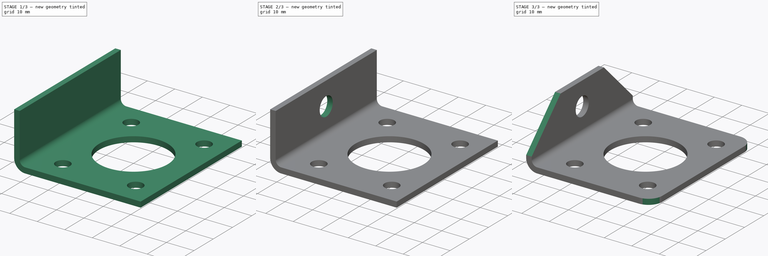
[diagram: build sequence overview — one tinted view per stage of 3, left to right]
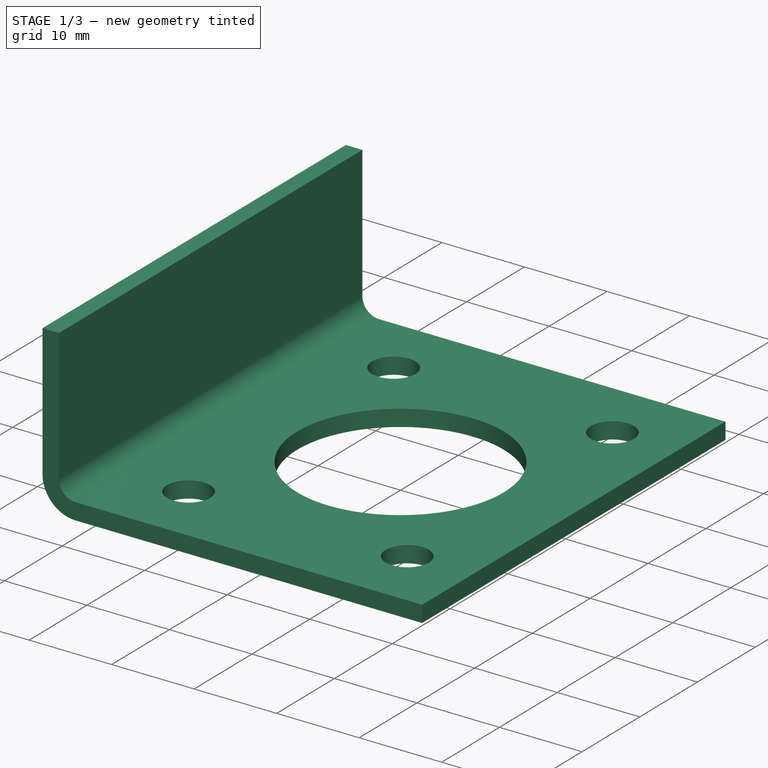
[diagram: stage 1 of 3 — iso view after this stage's code; geometry added in this stage tinted green]
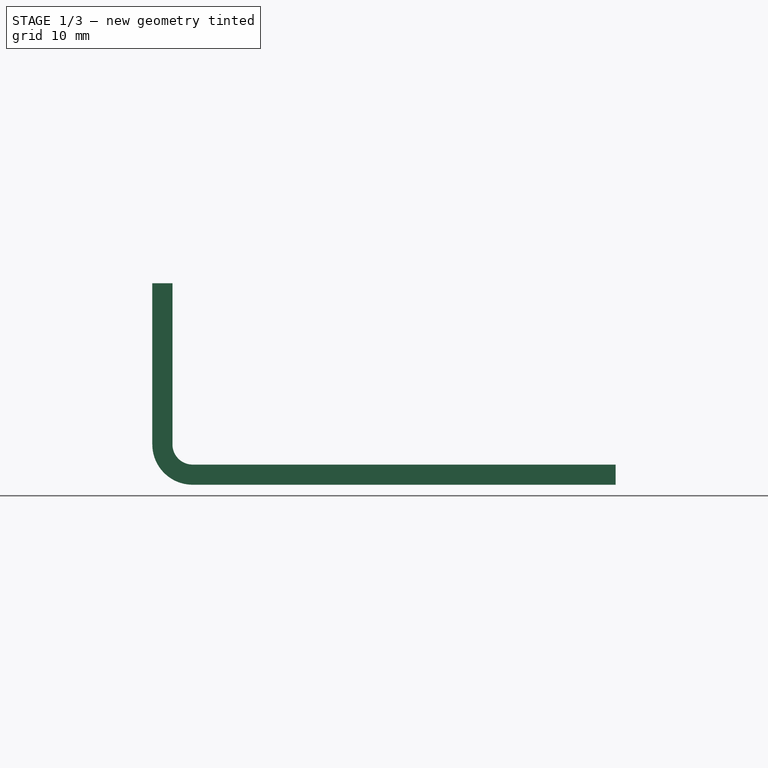
[diagram: stage 1 of 3 — front view after this stage's code; geometry added in this stage tinted green]
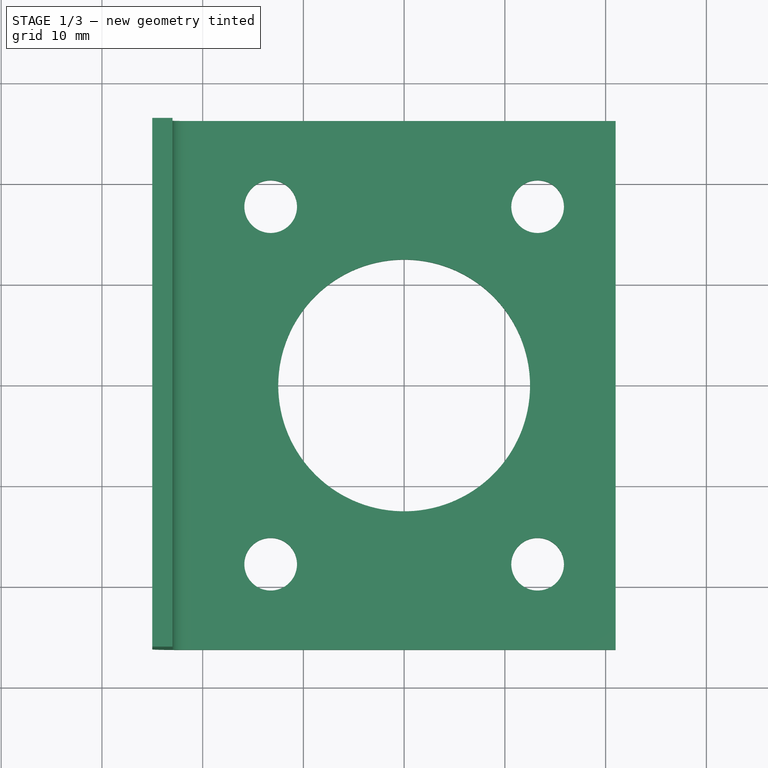
[diagram: stage 1 of 3 — top view after this stage's code; geometry added in this stage tinted green]
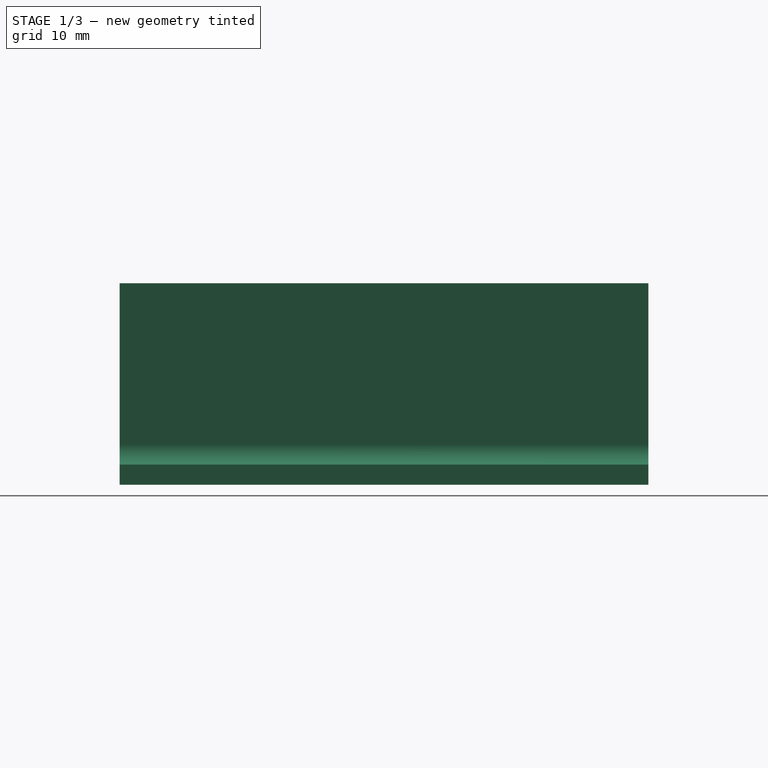
[diagram: stage 1 of 3 — right view after this stage's code; geometry added in this stage tinted green]
FCSTD DOCUMENT  (FreeCAD 0.21R33668 +26 (Git))
Label: Door Latch catch plate
License: All rights reserved
LicenseURL: http://en.wikipedia.org/wiki/All_rights_reserved
objects: Sketcher::SketchObject×6, PartDesign::Pad×1, PartDesign::FeaturePython×1, PartDesign::Pocket×1, PartDesign::Chamfer×1, PartDesign::Fillet×1, PartDesign::Body×1, Part::Feature×1
note: 17 computed .brp shape members not serialized (recipe doc carries the construction recipe); baked Part::Feature solids carry a one-line shape summary decoded from their .brp

FEATURE [Sketcher::SketchObject] Sketch
  FullyConstrained = true
  MapMode = 5
  Support = -> [XY_Plane]
  sketch-geometry (9):
    g0: LineSegment StartX=-21 StartY=26.25 StartZ=0 EndX=21 EndY=26.25 EndZ=0
    g1: LineSegment StartX=21 StartY=26.25 StartZ=0 EndX=21 EndY=-26.25 EndZ=0
    g2: LineSegment StartX=21 StartY=-26.25 StartZ=0 EndX=-21 EndY=-26.25 EndZ=0
    g3: LineSegment StartX=-21 StartY=-26.25 StartZ=0 EndX=-21 EndY=26.25 EndZ=0
    g4: Circle CenterX=0 CenterY=0 CenterZ=0 NormalX=0 NormalY=0 NormalZ=1 AngleXU=0 Radius=12.5
    g5: Circle CenterX=-13.25 CenterY=17.75 CenterZ=0 NormalX=0 NormalY=0 NormalZ=1 AngleXU=0 Radius=2.615
    g6: Circle CenterX=13.25 CenterY=17.75 CenterZ=0 NormalX=0 NormalY=0 NormalZ=1 AngleXU=0 Radius=2.615
    g7: Circle CenterX=13.25 CenterY=-17.75 CenterZ=0 NormalX=0 NormalY=0 NormalZ=1 AngleXU=0 Radius=2.615
    g8: Circle CenterX=-13.25 CenterY=-17.75 CenterZ=0 NormalX=0 NormalY=0 NormalZ=1 AngleXU=0 Radius=2.615
  constraints (24):
    c: Coincident(g0,g1)
    c: Coincident(g1,g2)
    c: Coincident(g2,g3)
    c: Coincident(g3,g0)
    c: Horizontal(g0)
    c: Horizontal(g2)
    c: Vertical(g1)
    c: Vertical(g3)
    c: Symmetric(g0,g1,g-1)
    c: DistanceX(g0,g0) = 42
    c: DistanceY(g3,g3) = 52.5
    c: Coincident(g4,g-1)
    c: Diameter(g4) = 25
    c: Diameter(g5) = 5.23
    c: Equal(g5,g8)
    c: Equal(g5,g7)
    c: Horizontal(g5,g6)
    c: Horizontal(g7,g8)
    c: Vertical(g5,g8)
    c: Vertical(g7,g6)
    c: DistanceY(g7,g6) = 35.5
    c: DistanceX(g5,g6) = 26.5
    c: Equal(g5,g6)
    c: Symmetric(g5,g7,g4)
FEATURE [PartDesign::Pad] Pad
  Direction = (0,0,1)
  Length = 2
  Length2 = 10
  Profile = -> Sketch
  ReferenceAxis = -> Sketch [N_Axis]
  Type = 0
FEATURE [PartDesign::FeaturePython] Bend  # WARN: FeaturePython — macro-defined, semantics opaque (R4)
  AutoMiter = true
  BaseFeature = -> Pad
  BendType = 0
  LengthList = [16]
  LengthSpec = 0
  ReliefFactor = 0.7
  UseReliefFactor = false
  angle = 90
  baseObject = -> Pad [Face4]
  bendAList = [90]
  extend1 = 0
  extend2 = 0
  gap1 = 0
  gap2 = 0
  invert = false
  kfactor = 0.5
  length = 16
  maxExtendDist = 5
  minGap = 0.2
  minReliefGap = 1
  miterangle1 = 0
  miterangle2 = 0
  offset = 0
  radius = 2
  reliefType = 0
  reliefd = 1
  reliefw = 0.8
  sketchflip = false
  sketchinvert = false
  unfold = false
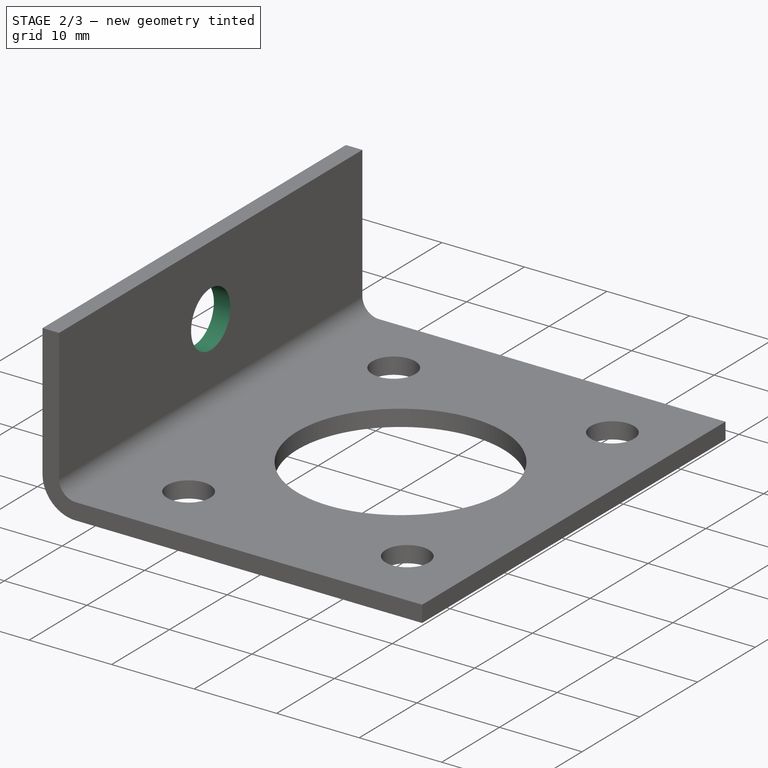
[diagram: stage 2 of 3 — iso view after this stage's code; geometry added in this stage tinted green]
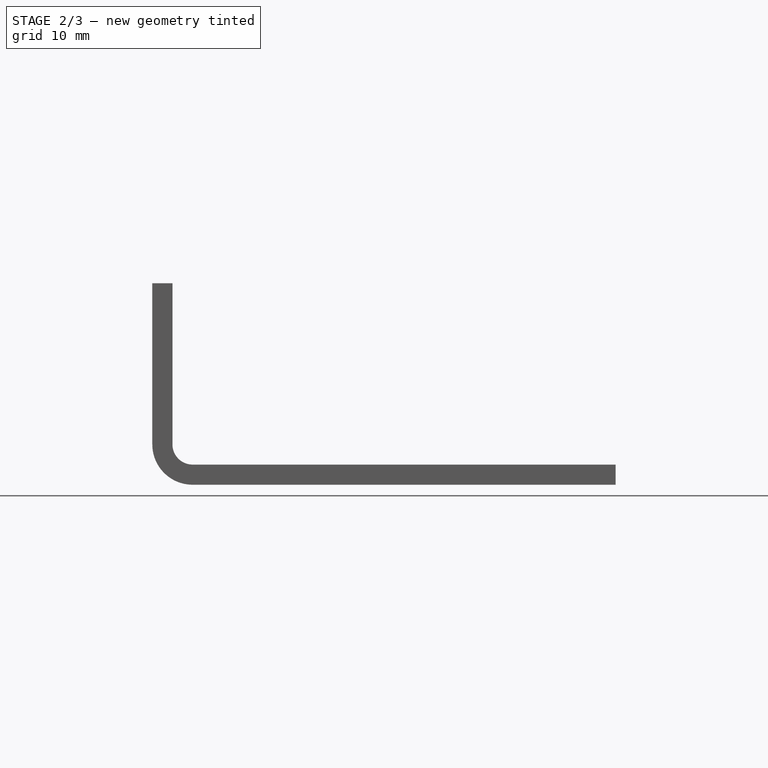
[diagram: stage 2 of 3 — front view after this stage's code; geometry added in this stage tinted green]
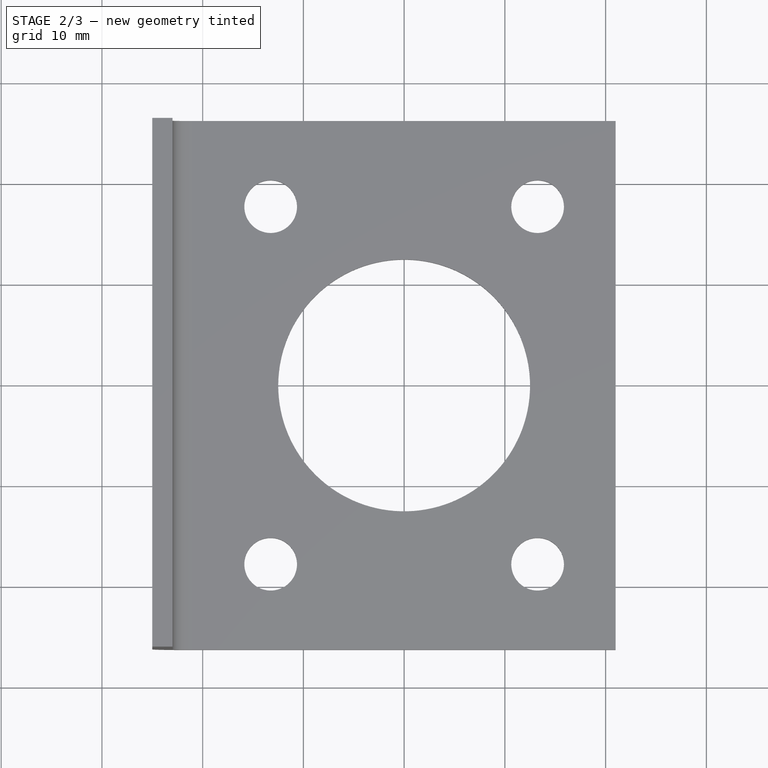
[diagram: stage 2 of 3 — top view after this stage's code; geometry added in this stage tinted green]
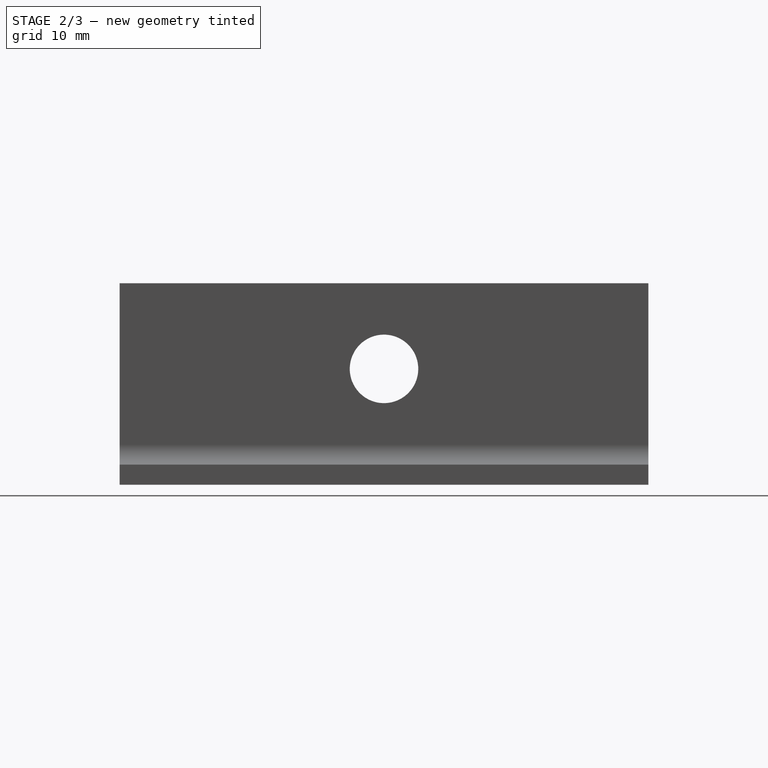
[diagram: stage 2 of 3 — right view after this stage's code; geometry added in this stage tinted green]
FEATURE [Sketcher::SketchObject] Sketch001
  FullyConstrained = true
  MapMode = 5
  Placement = pos=(0,0,0) rot=(0.57735,0.57735,0.57735;2.0944rad)
  Support = -> [YZ_Plane]
  sketch-geometry (1):
    g0: Circle CenterX=0 CenterY=11.5 CenterZ=0 NormalX=0 NormalY=0 NormalZ=1 AngleXU=0 Radius=3.4
  constraints (3):
    c: PointOnObject(g0,g-2)
    c: Diameter(g0) = 6.8
    c: DistanceY(g-1,g0) = 11.5
FEATURE [PartDesign::Pocket] Pocket
  BaseFeature = -> Bend
  Direction = (-1,2e-16,-3e-16)
  Length = 25
  Length2 = 5
  Profile = -> Sketch001
  ReferenceAxis = -> Sketch001 [N_Axis]
  Type = 0
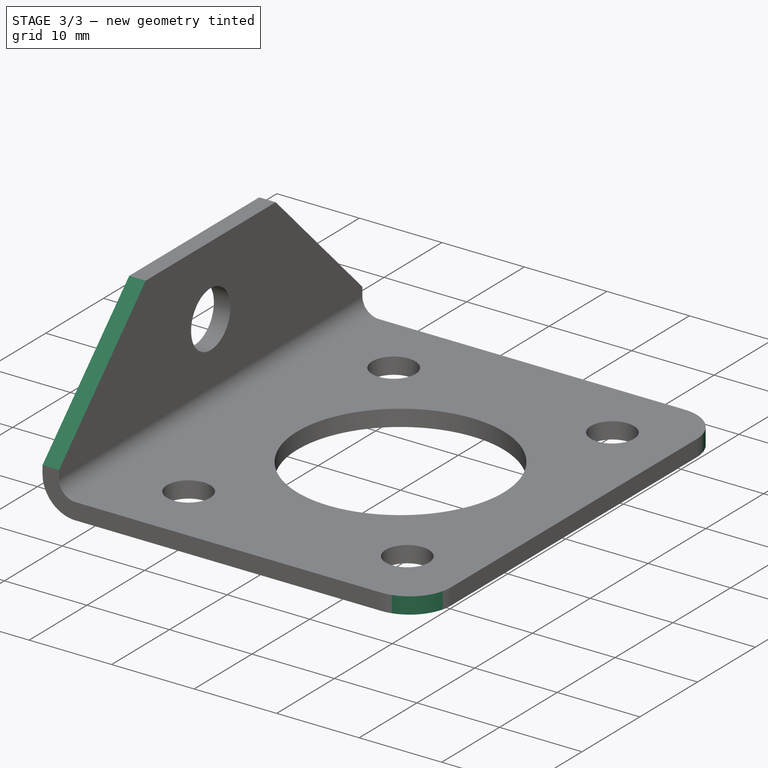
[diagram: stage 3 of 3 — iso view after this stage's code; geometry added in this stage tinted green]
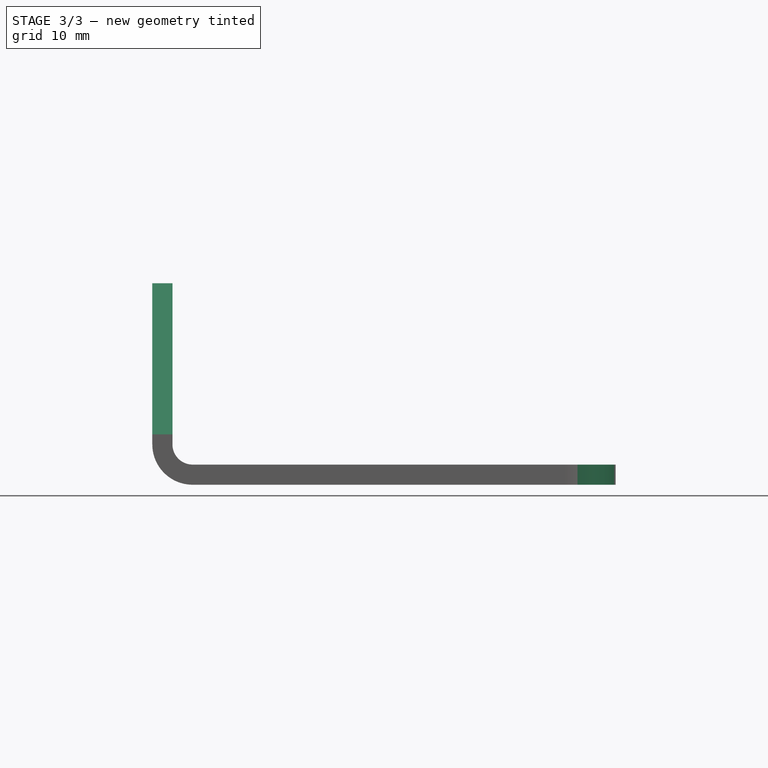
[diagram: stage 3 of 3 — front view after this stage's code; geometry added in this stage tinted green]
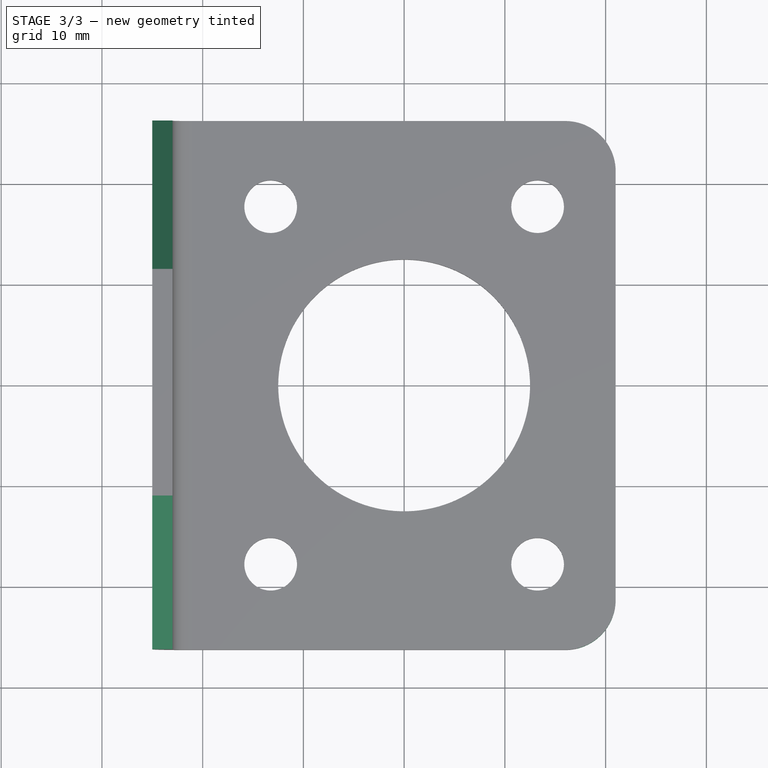
[diagram: stage 3 of 3 — top view after this stage's code; geometry added in this stage tinted green]
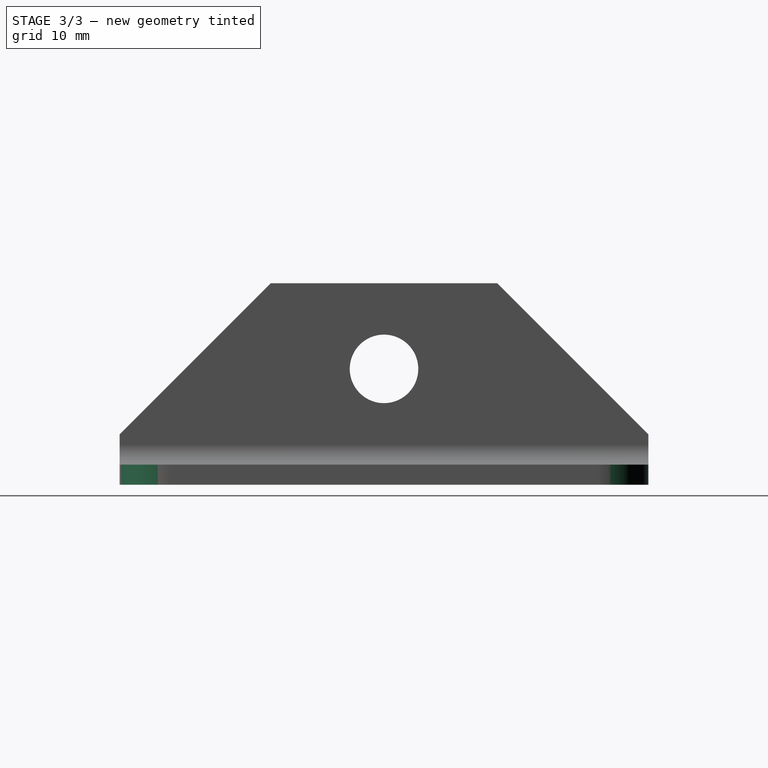
[diagram: stage 3 of 3 — right view after this stage's code; geometry added in this stage tinted green]
FEATURE [PartDesign::Chamfer] Chamfer
  Angle = 45
  Base = -> Pocket [Edge8,Edge2]
  BaseFeature = -> Pocket
  ChamferType = 0
  FlipDirection = false
  Size = 15
  Size2 = 1
  SupportTransform = false
  UseAllEdges = false
FEATURE [PartDesign::Fillet] Fillet
  Base = -> Chamfer [Edge47,Edge29]
  BaseFeature = -> Chamfer
  Radius = 5
  SupportTransform = false
  UseAllEdges = false
FEATURE [PartDesign::Body] Body
  Group = -> [Sketch,Pad,Bend,Sketch001,Pocket,Chamfer,Fillet]
  Origin = -> Origin
  Tip = -> Fillet
FEATURE [Part::Feature] Unfold
  shape: bbox 62.4 x 52.5 x 2 mm, 16 faces (baked)
FEATURE [Sketcher::SketchObject] Unfold_Sketch
  FullyConstrained = false
  sketch-geometry (14):
    g0: ArcOfCircle CenterX=16 CenterY=21.25 CenterZ=0 NormalX=0 NormalY=0 NormalZ=1 AngleXU=-1.5708 Radius=5 StartAngle=1.5708 EndAngle=3.14159
    g1: LineSegment StartX=21 StartY=21.25 StartZ=0 EndX=21 EndY=-21.25 EndZ=0
    g2: ArcOfCircle CenterX=16 CenterY=-21.25 CenterZ=0 NormalX=0 NormalY=0 NormalZ=1 AngleXU=-1.5708 Radius=5 StartAngle=0 EndAngle=1.5708
    g3: LineSegment StartX=-26.3982 StartY=-26.25 StartZ=0 EndX=-41.3982 EndY=-11.25 EndZ=0
    g4: LineSegment StartX=-41.3982 StartY=-11.25 StartZ=0 EndX=-41.3982 EndY=11.25 EndZ=0
    g5: LineSegment StartX=-41.3982 StartY=11.25 StartZ=0 EndX=-26.3982 EndY=26.25 EndZ=0
    g6: Circle CenterX=0 CenterY=0 CenterZ=0 NormalX=0 NormalY=0 NormalZ=1 AngleXU=0 Radius=12.5
    g7: Circle CenterX=-32.8982 CenterY=7.7e-15 CenterZ=0 NormalX=0 NormalY=0 NormalZ=1 AngleXU=1.5708 Radius=3.4
    g8: Circle CenterX=-13.25 CenterY=-17.75 CenterZ=0 NormalX=0 NormalY=0 NormalZ=1 AngleXU=0 Radius=2.615
    g9: Circle CenterX=13.25 CenterY=-17.75 CenterZ=0 NormalX=0 NormalY=0 NormalZ=1 AngleXU=0 Radius=2.615
    g10: Circle CenterX=13.25 CenterY=17.75 CenterZ=0 NormalX=0 NormalY=0 NormalZ=1 AngleXU=0 Radius=2.615
    g11: Circle CenterX=-13.25 CenterY=17.75 CenterZ=0 NormalX=0 NormalY=0 NormalZ=1 AngleXU=0 Radius=2.615
    g12: LineSegment StartX=16 StartY=-26.25 StartZ=0 EndX=-26.3982 EndY=-26.25 EndZ=0
    g13: LineSegment StartX=-26.3982 StartY=26.25 StartZ=0 EndX=16 EndY=26.25 EndZ=0
FEATURE [Sketcher::SketchObject] Unfold_Sketch_Outline
  FullyConstrained = false
  sketch-geometry (8):
    g0: LineSegment StartX=16 StartY=-26.25 StartZ=0 EndX=-26.3982 EndY=-26.25 EndZ=0
    g1: ArcOfCircle CenterX=16 CenterY=-21.25 CenterZ=0 NormalX=0 NormalY=0 NormalZ=1 AngleXU=-1.5708 Radius=5 StartAngle=0 EndAngle=1.5708
    g2: LineSegment StartX=21 StartY=21.25 StartZ=0 EndX=21 EndY=-21.25 EndZ=0
    g3: ArcOfCircle CenterX=16 CenterY=21.25 CenterZ=0 NormalX=0 NormalY=0 NormalZ=1 AngleXU=-1.5708 Radius=5 StartAngle=1.5708 EndAngle=3.14159
    g4: LineSegment StartX=-26.3982 StartY=26.25 StartZ=0 EndX=16 EndY=26.25 EndZ=0
    g5: LineSegment StartX=-41.3982 StartY=11.25 StartZ=0 EndX=-26.3982 EndY=26.25 EndZ=0
    g6: LineSegment StartX=-41.3982 StartY=-11.25 StartZ=0 EndX=-41.3982 EndY=11.25 EndZ=0
    g7: LineSegment StartX=-26.3982 StartY=-26.25 StartZ=0 EndX=-41.3982 EndY=-11.25 EndZ=0
FEATURE [Sketcher::SketchObject] Unfold_Sketch_Internal
  FullyConstrained = false
  sketch-geometry (6):
    g0: Circle CenterX=0 CenterY=0 CenterZ=0 NormalX=0 NormalY=0 NormalZ=1 AngleXU=0 Radius=12.5
    g1: Circle CenterX=-32.8982 CenterY=7.7e-15 CenterZ=0 NormalX=0 NormalY=0 NormalZ=1 AngleXU=1.5708 Radius=3.4
    g2: Circle CenterX=-13.25 CenterY=17.75 CenterZ=0 NormalX=0 NormalY=0 NormalZ=1 AngleXU=0 Radius=2.615
    g3: Circle CenterX=13.25 CenterY=17.75 CenterZ=0 NormalX=0 NormalY=0 NormalZ=1 AngleXU=0 Radius=2.615
    g4: Circle CenterX=13.25 CenterY=-17.75 CenterZ=0 NormalX=0 NormalY=0 NormalZ=1 AngleXU=0 Radius=2.615
    g5: Circle CenterX=-13.25 CenterY=-17.75 CenterZ=0 NormalX=0 NormalY=0 NormalZ=1 AngleXU=0 Radius=2.615
FEATURE [Sketcher::SketchObject] Unfold_Sketch_bends
  FullyConstrained = false
  Placement = pos=(-5.00506,0,-9.54266) rot=(0,0.464482,0;0.483049rad)
  sketch-geometry (1):
    g0: LineSegment StartX=-20.5447 StartY=-26.25 StartZ=0 EndX=-20.5447 EndY=26.25 EndZ=0
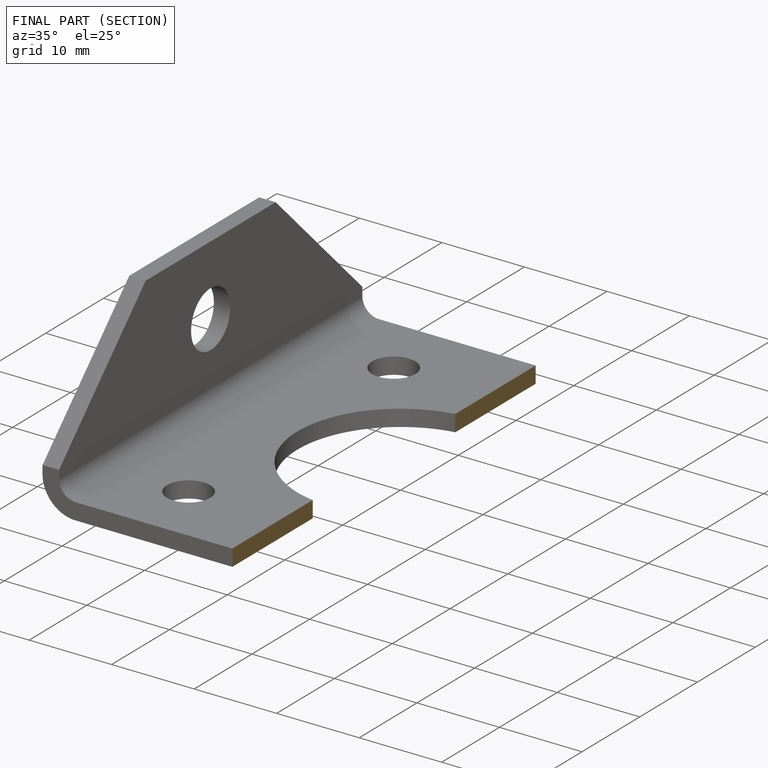
[diagram: finished part — half-section view (interior)]
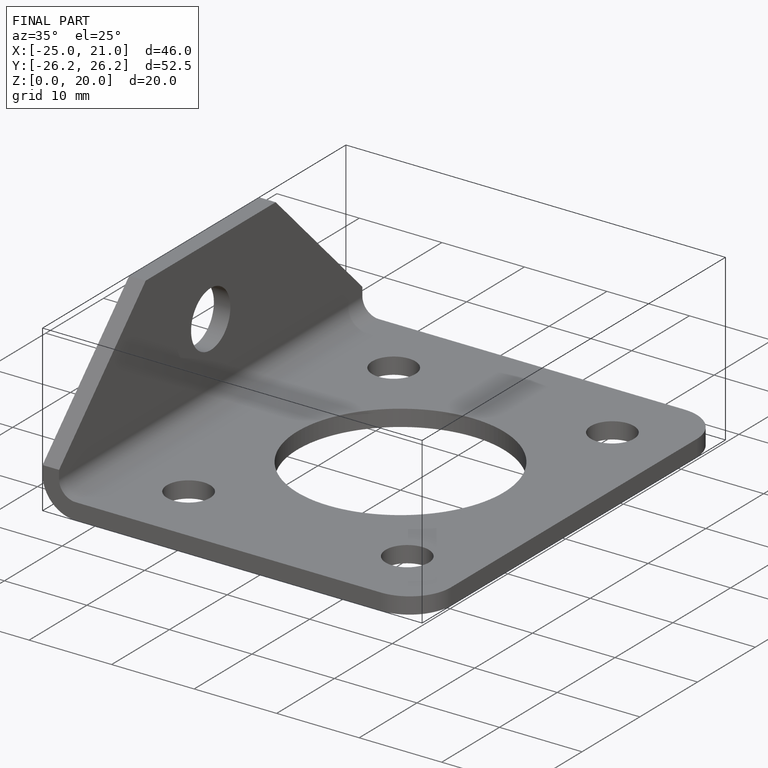
[diagram: finished part — iso view with bounding-box wireframe]
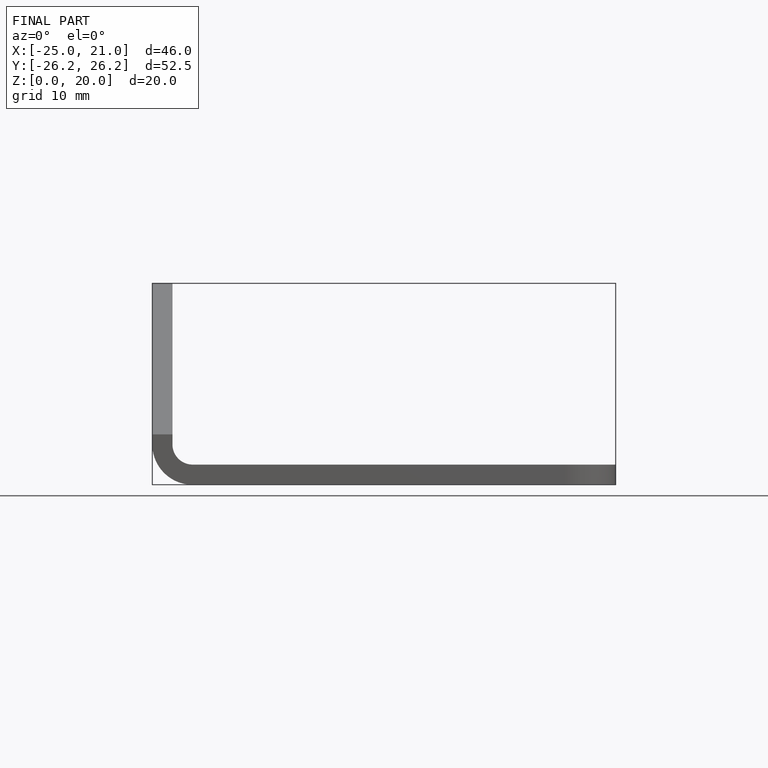
[diagram: finished part — front view with bounding-box wireframe]
